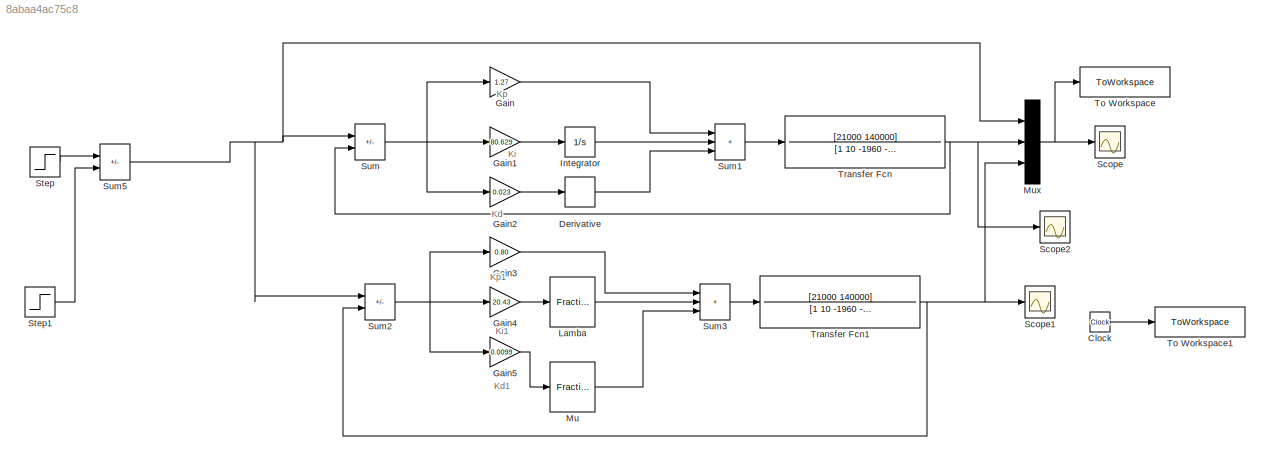
MODEL slx_8abaa4ac75c8
KIND model
CONFIG AbsTol = auto
CONFIG EnableMultiTasking = off
CONFIG FixedStep = auto
CONFIG MaxStep = auto
CONFIG MinStep = auto
CONFIG RelTol = 1e-3
CONFIG SampleTimeConstraint = Unconstrained
CONFIG SolverName = VariableStepAuto
CONFIG StartTime = 0.0
CONFIG StopTime = 1
BLOCK [Clock] Clock
BLOCK [Derivative] Derivative
BLOCK [Gain] Gain
  Gain = 1.27
BLOCK [Gain] Gain1
  Gain = 80.629
BLOCK [Gain] Gain2
  Gain = 0.023
BLOCK [Gain] Gain3
  Gain = 0.80
BLOCK [Gain] Gain4
  Gain = 20.43
BLOCK [Gain] Gain5
  Gain = 0.0099
BLOCK [Integrator] Integrator
  Ports = [1, 1]
BLOCK [Reference] Lamba  REF=fod/Fractional  (lib defined in slx_5cb2d42c7bef)
integrator
  Ports = [1, 1]
  SourceBlock = fod/Fractional\nintegrator
  SourceProductName = FOMCON Toolbox
  SourceType = Fractional integrator
BLOCK [Reference] Mu  REF=fod/Fractional  (lib defined in slx_5cb2d42c7bef)
derivative
  Ports = [1, 1]
  SourceBlock = fod/Fractional\nderivative
  SourceProductName = FOMCON Toolbox
  SourceType = Fractional derivative
BLOCK [Mux] Mux
  DisplayOption = bar
  Inputs = 3
  Ports = [3, 1]
BLOCK [Scope] Scope
  Floating = off
  NumInputPorts = 1
  Ports = [1]
  ScopeSpecificationString = Simulink.scopes.TimeScopeBlockCfg('CurrentConfiguration', extmgr.ConfigurationSet(extmgr.Configuration('Core','General UI',true,'FigureColor',[1 1 1]),extmgr.Configuration('Core','Source UI',true),extmgr.Configuration('Sources','WiredSimulink',true),extmgr.Configuration('Visuals','Time Domain',true,'SerializedDisplays',{struct('MinYLimReal','-0.08901','MaxYLimReal','0.80112','YLabelReal','','MinYL...<+1781ch>
BLOCK [Scope] Scope1
  Floating = off
  NumInputPorts = 1
  Ports = [1]
  ScopeSpecificationString = Simulink.scopes.TimeScopeBlockCfg('CurrentConfiguration', extmgr.ConfigurationSet(extmgr.Configuration('Core','General UI',true,'FigureColor',[1 1 1]),extmgr.Configuration('Core','Source UI',true),extmgr.Configuration('Sources','WiredSimulink',true,'DataLoggingVariableName','ScopeData1'),extmgr.Configuration('Visuals','Time Domain',true,'SerializedDisplays',{struct('MinYLimReal','-0.08875','MaxYLi...<+1590ch>
BLOCK [Scope] Scope2
  Floating = off
  NumInputPorts = 1
  Ports = [1]
  ScopeSpecificationString = Simulink.scopes.TimeScopeBlockCfg('CurrentConfiguration', extmgr.ConfigurationSet(extmgr.Configuration('Core','General UI',true),extmgr.Configuration('Core','Source UI',true),extmgr.Configuration('Sources','WiredSimulink',true,'DataLoggingVariableName','ScopeData2'),extmgr.Configuration('Visuals','Time Domain',true,'SerializedDisplays',{struct('MinYLimReal','-0.07336','MaxYLimReal','0.66023','YLab...<+1469ch>
BLOCK [Step] Step
  After = 0.5
  SampleTime = 0
  Time = 0
BLOCK [Step] Step1
  After = 0.3
  SampleTime = 0
  Time = 0.5
BLOCK [Sum] Sum
  IconShape = rectangular
  Inputs = |+-
  Ports = [2, 1]
BLOCK [Sum] Sum1
  IconShape = rectangular
  Inputs = +++
  Ports = [3, 1]
BLOCK [Sum] Sum2
  IconShape = rectangular
  Inputs = |+-
  Ports = [2, 1]
BLOCK [Sum] Sum3
  IconShape = rectangular
  Inputs = +++
  Ports = [3, 1]
BLOCK [Sum] Sum5
  IconShape = rectangular
  Inputs = |+-
  Ports = [2, 1]
BLOCK [ToWorkspace] To Workspace
  FixptAsFi = on
  MaxDataPoints = inf
  Ports = [1]
  SampleTime = -1
  VariableName = output2
BLOCK [ToWorkspace] To Workspace1
  FixptAsFi = on
  MaxDataPoints = inf
  Ports = [1]
  SampleTime = -1
  VariableName = time
BLOCK [TransferFcn] Transfer Fcn
  Denominator = [1 10 -1960 -19600]
  Numerator = [21000 140000]
BLOCK [TransferFcn] Transfer Fcn1
  Denominator = [1 10 -1960 -19600]
  Numerator = [21000 140000]
ANNOTATION (root): Kd
ANNOTATION (root): Kd1
ANNOTATION (root): Ki
ANNOTATION (root): Ki1
ANNOTATION (root): Kp
ANNOTATION (root): Kp1
LINE Clock:1 -> To Workspace1:1
LINE Derivative:1 -> Sum1:3
LINE Gain1:1 -> Integrator:1
LINE Gain2:1 -> Derivative:1
LINE Gain3:1 -> Sum3:1
LINE Gain4:1 -> Lamba:1
LINE Gain5:1 -> Mu:1
LINE Gain:1 -> Sum1:1
LINE Integrator:1 -> Sum1:2
LINE Lamba:1 -> Sum3:2
LINE Mu:1 -> Sum3:3
NET Mux:1 -> Scope:1, To Workspace:1
LINE Step1:1 -> Sum5:2
LINE Step:1 -> Sum5:1
LINE Sum1:1 -> Transfer Fcn:1
NET Sum2:1 -> Gain3:1, Gain4:1, Gain5:1
LINE Sum3:1 -> Transfer Fcn1:1
NET Sum5:1 -> Mux:1, Sum2:1, Sum:1
NET Sum:1 -> Gain1:1, Gain2:1, Gain:1
NET Transfer Fcn1:1 -> Mux:3, Scope1:1, Sum2:2
NET Transfer Fcn:1 -> Mux:2, Scope2:1, Sum:2
note: NET lines group one-source signal fan-out (src -> all destinations, sorted); 1:1 wires keep LINE
